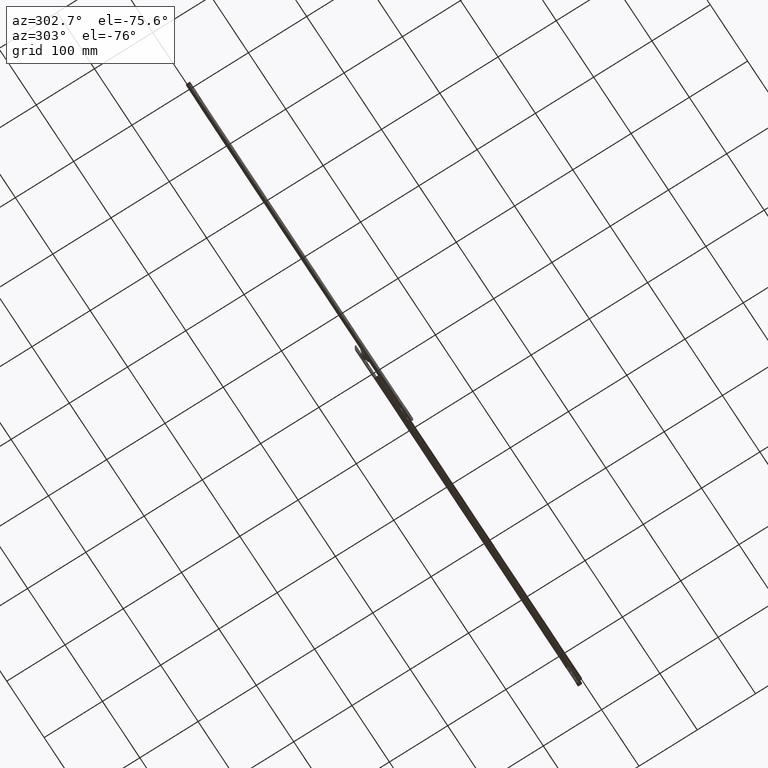
[diagram: clean part render]
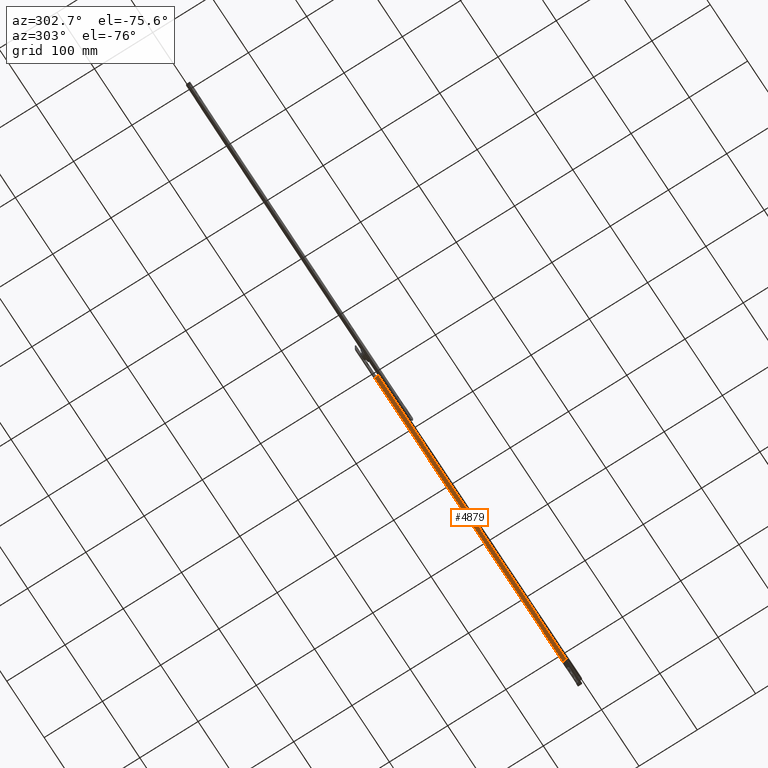
[diagram: same view with one face highlighted and labeled with its STEP entity id]
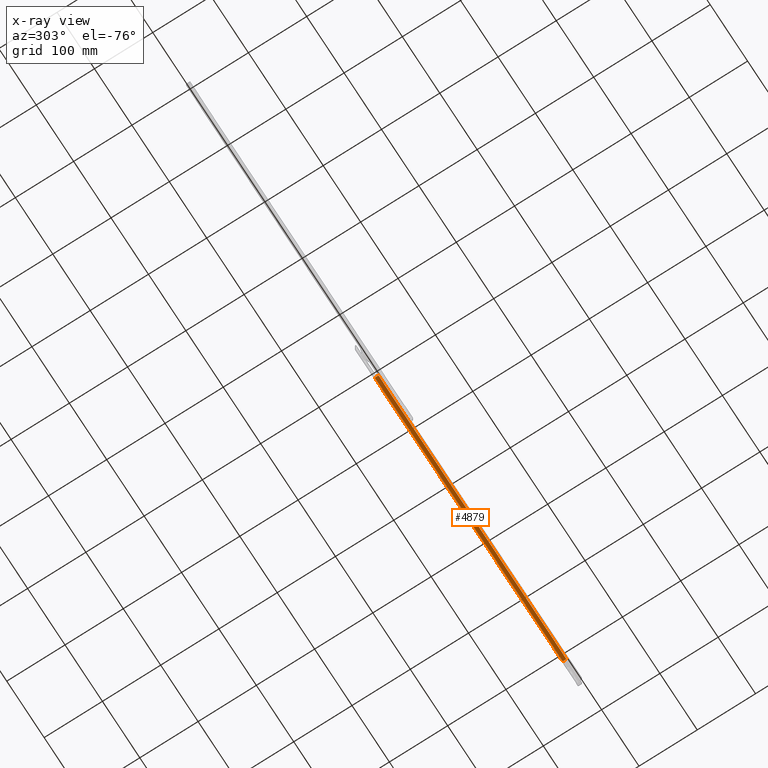
[diagram: x-ray of the same camera — body ghosted, the highlighted face saturated]
A machine part, auxiliary view. The second image highlights one B-rep face of the part: STEP entity #4879.
The next image is the same camera in x-ray: the body ghosted, the highlighted face saturated — about 0% of this face is hidden behind the body in this view.
In plain terms, the highlighted face is a freeform B-spline surface patch.
Its self-contained STEP definition (entity closure, byte-faithful):
#2779=CARTESIAN_POINT('',(-43.0,4.499999999999775,1.500000000000000));
#2780=VERTEX_POINT('',#2779);
#2781=CARTESIAN_POINT('',(-44.500000000000000,5.999999999999780,1.500000000000000));
#2782=VERTEX_POINT('',#2781);
#2783=CARTESIAN_POINT('',(-43.0,4.499999999999781,1.500000000000000));
#2784=CARTESIAN_POINT('',(-44.500000000000007,4.499999999999781,1.500000000000000));
#2785=CARTESIAN_POINT('',(-44.500000000000000,5.999999999999780,1.500000000000000));
#2793=(BOUNDED_CURVE()B_SPLINE_CURVE(2,(#2783,#2784,#2785),.UNSPECIFIED.,.F.,.U.)CURVE()GEOMETRIC_REPRESENTATION_ITEM()QUASI_UNIFORM_CURVE()RATIONAL_B_SPLINE_CURVE((1.0,0.707106781186548,1.0))REPRESENTATION_ITEM(''));
#2794=EDGE_CURVE('',#2780,#2782,#2793,.T.);
#3142=CARTESIAN_POINT('',(-44.500000000000000,11.0,1.500000000000000));
#3143=VERTEX_POINT('',#3142);
#3144=CARTESIAN_POINT('',(-44.500000000000000,11.0,1.500000000000000));
#3145=CARTESIAN_POINT('',(-44.500000000000000,5.999999999999780,1.500000000000000));
#3146=QUASI_UNIFORM_CURVE('',1,(#3144,#3145),.UNSPECIFIED.,.F.,.U.);
#3147=EDGE_CURVE('',#3143,#2782,#3146,.T.);
#3734=CARTESIAN_POINT('',(458.0,10.999999999999680,1.500000000000000));
#3735=VERTEX_POINT('',#3734);
#3749=CARTESIAN_POINT('',(-44.500000000000000,11.0,1.500000000000000));
#3750=CARTESIAN_POINT('',(458.0,10.999999999999680,1.500000000000000));
#3751=QUASI_UNIFORM_CURVE('',1,(#3749,#3750),.UNSPECIFIED.,.F.,.U.);
#3752=EDGE_CURVE('',#3143,#3735,#3751,.T.);
#4756=CARTESIAN_POINT('',(458.0,4.499999999999725,1.500000000000000));
#4757=VERTEX_POINT('',#4756);
#4758=CARTESIAN_POINT('',(458.0,4.499999999999725,1.500000000000000));
#4759=CARTESIAN_POINT('',(-43.0,4.499999999999775,1.500000000000000));
#4760=QUASI_UNIFORM_CURVE('',1,(#4758,#4759),.UNSPECIFIED.,.F.,.U.);
#4761=EDGE_CURVE('',#4757,#2780,#4760,.T.);
#4863=CARTESIAN_POINT('',(483.099874026057480,4.175325012597972,1.500000000000000));
#4864=CARTESIAN_POINT('',(-69.599887504157763,4.175325012597972,1.500000000000000));
#4865=CARTESIAN_POINT('',(483.099874026057480,11.324675161745340,1.500000000000000));
#4866=CARTESIAN_POINT('',(-69.599887504157763,11.324675161745340,1.500000000000000));
#4867=B_SPLINE_SURFACE_WITH_KNOTS('',1,1,((#4863,#4865),(#4864,#4866)),.UNSPECIFIED.,.F.,.F.,.U.,(2,2),(2,2),(0.0,552.699761530215260),(0.0,7.149350149147366),.UNSPECIFIED.);
#4868=ORIENTED_EDGE('',*,*,#4761,.T.);
#4869=ORIENTED_EDGE('',*,*,#2794,.T.);
#4870=ORIENTED_EDGE('',*,*,#3147,.F.);
#4871=ORIENTED_EDGE('',*,*,#3752,.T.);
#4872=CARTESIAN_POINT('',(458.0,4.499999999999725,1.500000000000000));
#4873=CARTESIAN_POINT('',(458.0,10.999999999999680,1.500000000000000));
#4874=QUASI_UNIFORM_CURVE('',1,(#4872,#4873),.UNSPECIFIED.,.F.,.U.);
#4875=EDGE_CURVE('',#4757,#3735,#4874,.T.);
#4876=ORIENTED_EDGE('',*,*,#4875,.F.);
#4877=EDGE_LOOP('',(#4868,#4869,#4870,#4871,#4876));
#4878=FACE_OUTER_BOUND('',#4877,.T.);
#4879=ADVANCED_FACE('',(#4878),#4867,.T.);